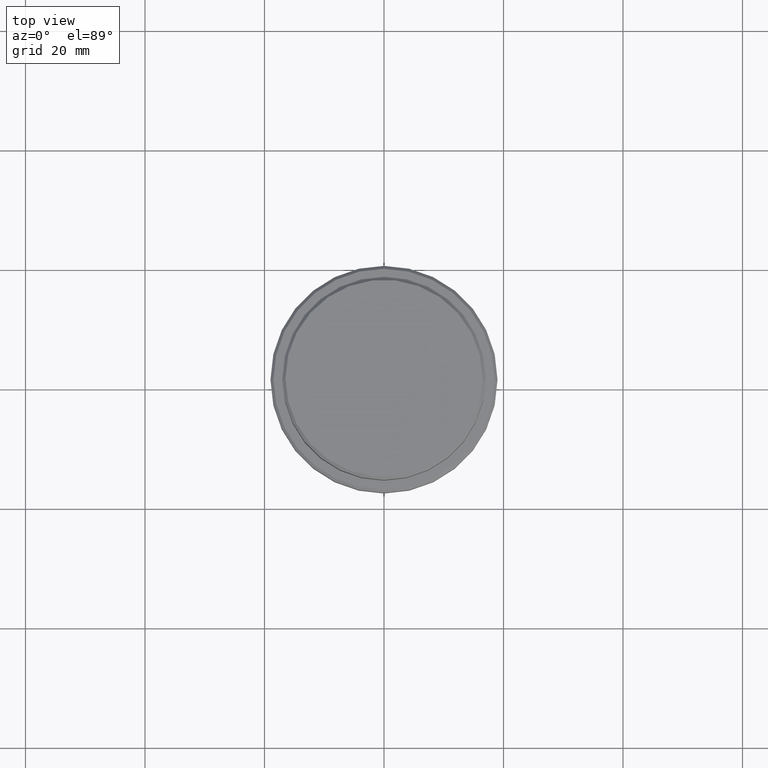
[diagram: clean part render]
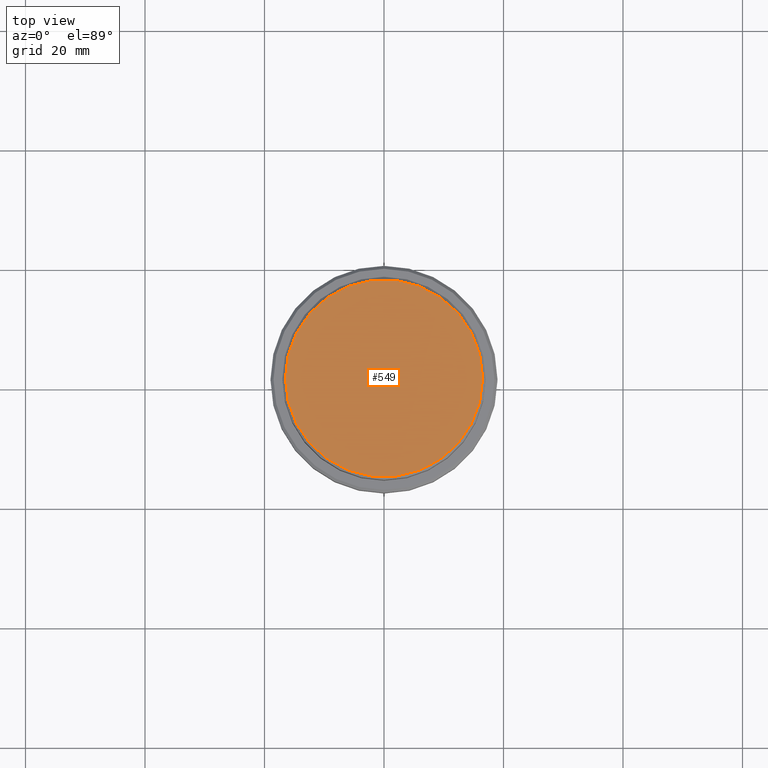
[diagram: same view with one face highlighted and labeled with its STEP entity id]
A machine part, top view. The second image highlights one B-rep face of the part: STEP entity #549.
In plain terms, the highlighted planar face has unit normal (0, -0, 1).
Its self-contained STEP definition (entity closure, byte-faithful):
#121 = EDGE_CURVE ( 'NONE', #441, #1109, #727, .T. ) ;
#163 = DIRECTION ( 'NONE',  ( -0.000000000000000000, -0.000000000000000000, 1.000000000000000000 ) ) ;
#229 = EDGE_CURVE ( 'NONE', #1109, #441, #395, .T. ) ;
#252 = EDGE_LOOP ( 'NONE', ( #991, #749 ) ) ;
#274 = DIRECTION ( 'NONE',  ( -0.000000000000000000, -0.000000000000000000, 1.000000000000000000 ) ) ;
#369 = DIRECTION ( 'NONE',  ( 1.000000000000000000, 0.000000000000000000, 0.000000000000000000 ) ) ;
#388 = PLANE ( 'NONE',  #945 ) ;
#395 = CIRCLE ( 'NONE', #944, 16.50000000000004263 ) ;
#441 = VERTEX_POINT ( 'NONE', #478 ) ;
#478 = CARTESIAN_POINT ( 'NONE',  ( 16.50000000000004263, 2.051283388571818859E-15, 0.000000000000000000 ) ) ;
#549 = ADVANCED_FACE ( 'NONE', ( #1388 ), #388, .T. ) ;
#591 = CARTESIAN_POINT ( 'NONE',  ( 0.000000000000000000, 0.000000000000000000, 0.000000000000000000 ) ) ;
#727 = CIRCLE ( 'NONE', #828, 16.50000000000004263 ) ;
#749 = ORIENTED_EDGE ( 'NONE', *, *, #121, .T. ) ;
#815 = CARTESIAN_POINT ( 'NONE',  ( 0.000000000000000000, 0.000000000000000000, 0.000000000000000000 ) ) ;
#828 = AXIS2_PLACEMENT_3D ( 'NONE', #591, #274, #904 ) ;
#904 = DIRECTION ( 'NONE',  ( 1.000000000000000000, 0.000000000000000000, 0.000000000000000000 ) ) ;
#944 = AXIS2_PLACEMENT_3D ( 'NONE', #1010, #163, #369 ) ;
#945 = AXIS2_PLACEMENT_3D ( 'NONE', #815, #1273, #1161 ) ;
#991 = ORIENTED_EDGE ( 'NONE', *, *, #229, .T. ) ;
#1001 = CARTESIAN_POINT ( 'NONE',  ( -16.50000000000004263, 0.000000000000000000, 0.000000000000000000 ) ) ;
#1010 = CARTESIAN_POINT ( 'NONE',  ( 0.000000000000000000, 0.000000000000000000, 0.000000000000000000 ) ) ;
#1109 = VERTEX_POINT ( 'NONE', #1001 ) ;
#1161 = DIRECTION ( 'NONE',  ( 1.000000000000000000, 0.000000000000000000, 0.000000000000000000 ) ) ;
#1273 = DIRECTION ( 'NONE',  ( 0.000000000000000000, -0.000000000000000000, 1.000000000000000000 ) ) ;
#1388 = FACE_OUTER_BOUND ( 'NONE', #252, .T. ) ;